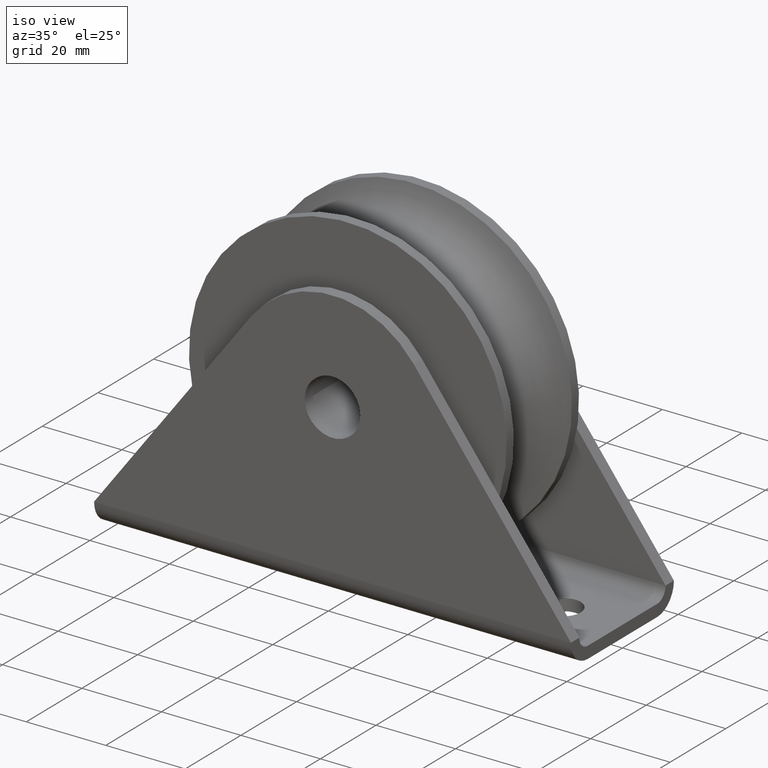
[diagram: clean part render]
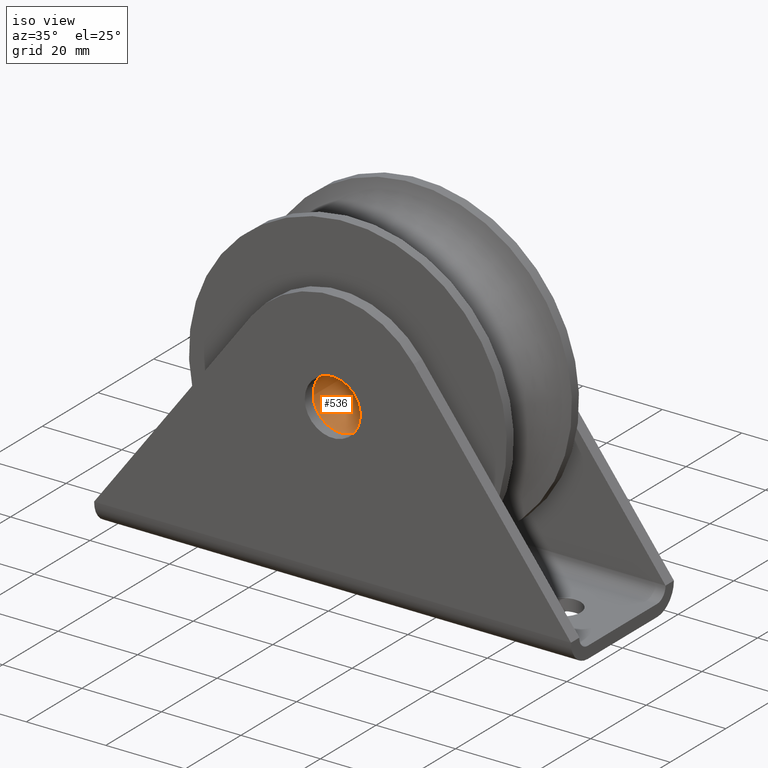
[diagram: same view with one face highlighted and labeled with its STEP entity id]
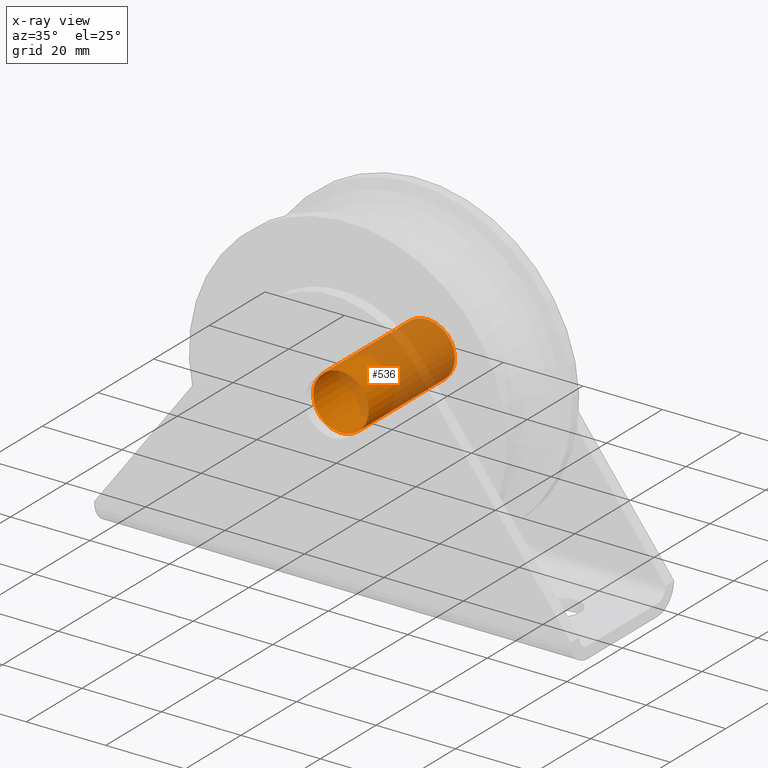
[diagram: x-ray of the same camera — body ghosted, the highlighted face saturated]
A machine part, iso view. The second image highlights one B-rep face of the part: STEP entity #536.
The next image is the same camera in x-ray: the body ghosted, the highlighted face saturated — about 55% of this face is hidden behind the body in this view.
In plain terms, the highlighted cylindrical surface (bore or boss wall) has radius 7 mm, axis along (0, 1, -0).
Its self-contained STEP definition (entity closure, byte-faithful):
#133=FACE_BOUND('',#227,.T.);
#169=FACE_OUTER_BOUND('',#226,.T.);
#226=EDGE_LOOP('',(#484));
#227=EDGE_LOOP('',(#485));
#249=CIRCLE('',#589,7.);
#257=CIRCLE('',#605,7.);
#291=VERTEX_POINT('',#899);
#299=VERTEX_POINT('',#923);
#353=EDGE_CURVE('',#291,#291,#249,.T.);
#361=EDGE_CURVE('',#299,#299,#257,.T.);
#484=ORIENTED_EDGE('',*,*,#353,.F.);
#485=ORIENTED_EDGE('',*,*,#361,.T.);
#500=CYLINDRICAL_SURFACE('',#606,7.);
#536=ADVANCED_FACE('',(#169,#133),#500,.F.);
#589=AXIS2_PLACEMENT_3D('',#900,#742,#743);
#605=AXIS2_PLACEMENT_3D('',#924,#774,#775);
#606=AXIS2_PLACEMENT_3D('',#925,#776,#777);
#742=DIRECTION('center_axis',(1.,0.,0.));
#743=DIRECTION('ref_axis',(0.,1.,0.));
#774=DIRECTION('center_axis',(1.,0.,0.));
#775=DIRECTION('ref_axis',(0.,1.,0.));
#776=DIRECTION('center_axis',(1.,0.,0.));
#777=DIRECTION('ref_axis',(0.,1.,0.));
#899=CARTESIAN_POINT('',(-15.5,7.,0.));
#900=CARTESIAN_POINT('Origin',(-15.5,0.,0.));
#923=CARTESIAN_POINT('',(15.5,7.,0.));
#924=CARTESIAN_POINT('Origin',(15.5,0.,0.));
#925=CARTESIAN_POINT('Origin',(0.,0.,0.));